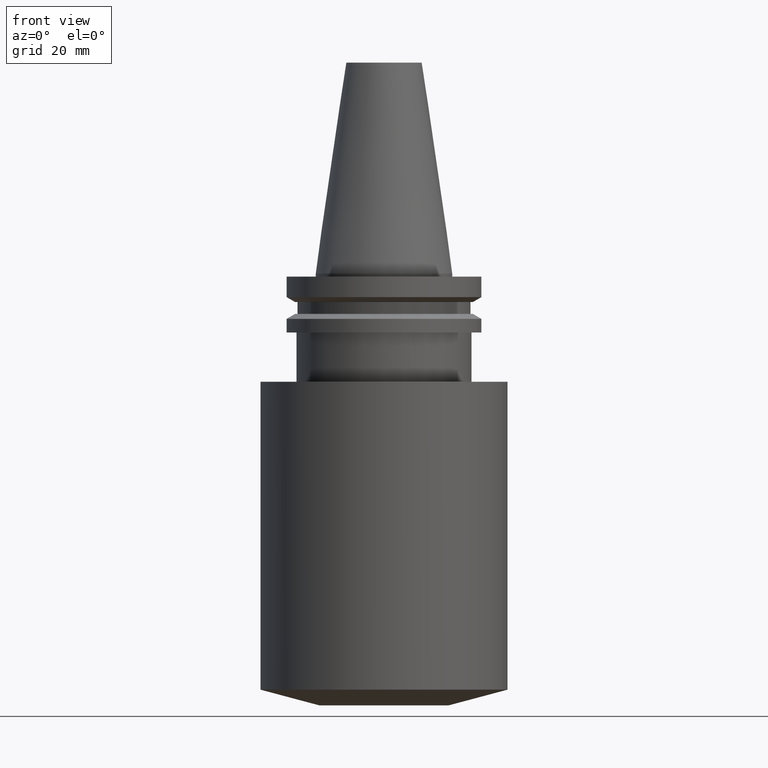
[diagram: clean part render]
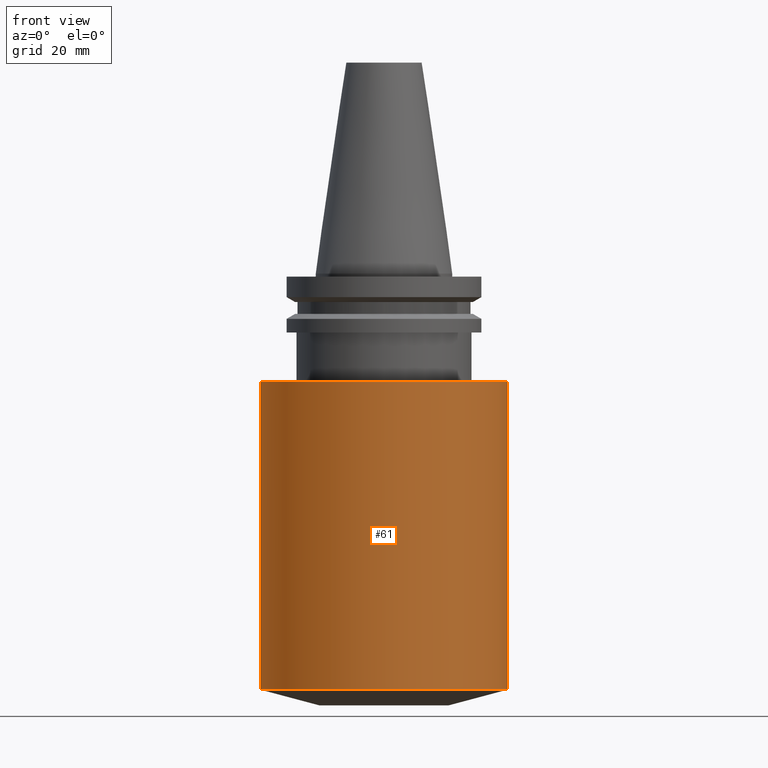
[diagram: same view with one face highlighted and labeled with its STEP entity id]
A machine part, front view. The second image highlights one B-rep face of the part: STEP entity #61.
In plain terms, the highlighted cylindrical surface (bore or boss wall) has radius 40 mm, axis along (0, 0, -1).
Its self-contained STEP definition (entity closure, byte-faithful):
#61=ADVANCED_FACE('Unnamed[1]',(#164,#165),#166,.T.);
#104=EDGE_CURVE('Unnamed[1]',#231,#231,#232,.T.);
#110=EDGE_CURVE('Unnamed[1]',#240,#240,#241,.T.);
#164=FACE_BOUND('',#306,.T.);
#165=FACE_BOUND('',#307,.T.);
#166=CYLINDRICAL_SURFACE('',#308,40.0000000000216);
#231=VERTEX_POINT('',#389);
#232=CIRCLE('',#390,40.0000000000015);
#240=VERTEX_POINT('',#401);
#241=CIRCLE('',#402,40.0000000000418);
#306=EDGE_LOOP('',(#471));
#307=EDGE_LOOP('',(#472));
#308=AXIS2_PLACEMENT_3D('',#473,#474,#475);
#389=CARTESIAN_POINT('',(8.24242192724159E-015,40.0000000000016,-134.608965343808));
#390=AXIS2_PLACEMENT_3D('',#545,#546,#547);
#401=CARTESIAN_POINT('',(2.14313189850798E-015,40.0000000000418,-35.0000000000019));
#402=AXIS2_PLACEMENT_3D('',#554,#555,#556);
#471=ORIENTED_EDGE('',*,*,#104,.F.);
#472=ORIENTED_EDGE('',*,*,#110,.T.);
#473=CARTESIAN_POINT('',(5.19277691287479E-015,1.03855538257496E-014,-84.8044826719051));
#474=DIRECTION('',(6.12323399573677E-017,1.22464679914735E-016,-1.0));
#475=DIRECTION('',(-1.23259516440783E-032,1.0,1.22464679914735E-016));
#545=CARTESIAN_POINT('',(8.24242192724159E-015,1.64848438544832E-014,-134.608965343808));
#546=DIRECTION('',(6.12323399573676E-017,1.22464679914735E-016,-1.0));
#547=DIRECTION('',(-1.23259516440783E-032,1.0,1.22464679914735E-016));
#554=CARTESIAN_POINT('',(2.14313189850798E-015,4.28626379701597E-015,-35.0000000000019));
#555=DIRECTION('',(6.12323399573677E-017,1.22464679914735E-016,-1.0));
#556=DIRECTION('',(-1.23259516440783E-032,1.0,1.22464679914735E-016));